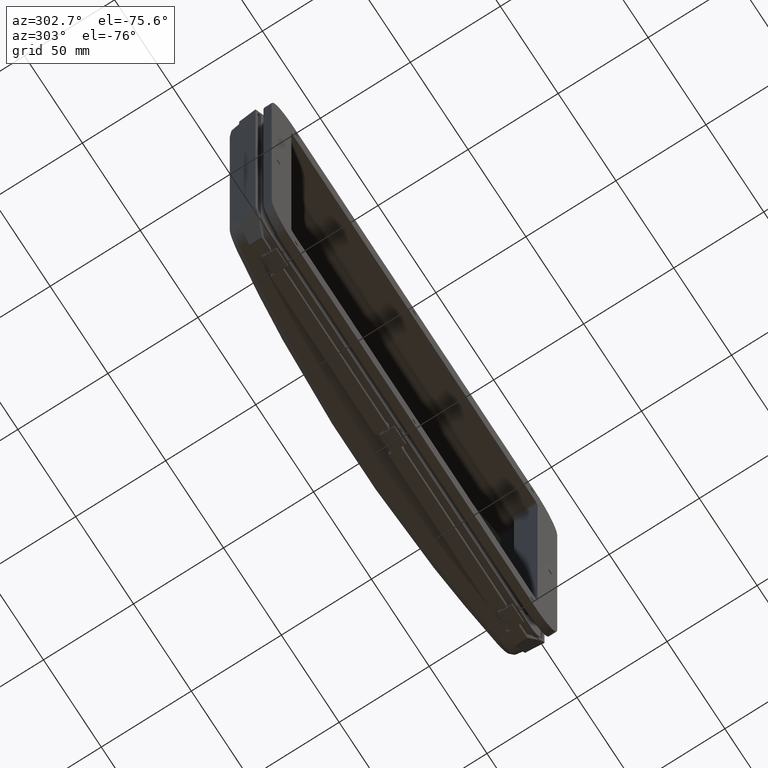
[diagram: clean part render]
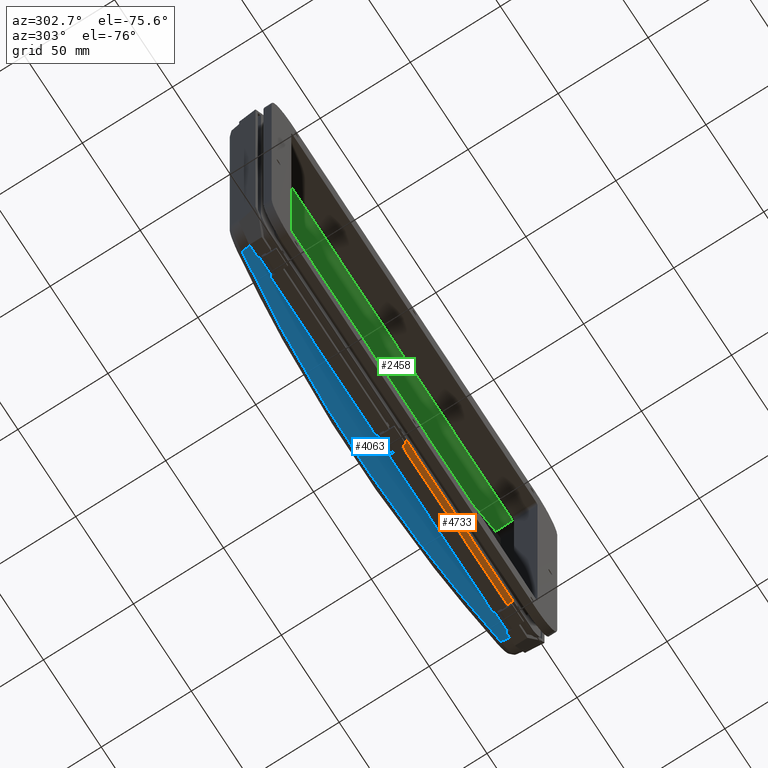
[diagram: same view with three faces highlighted in distinct colors, each labeled with its STEP entity id]
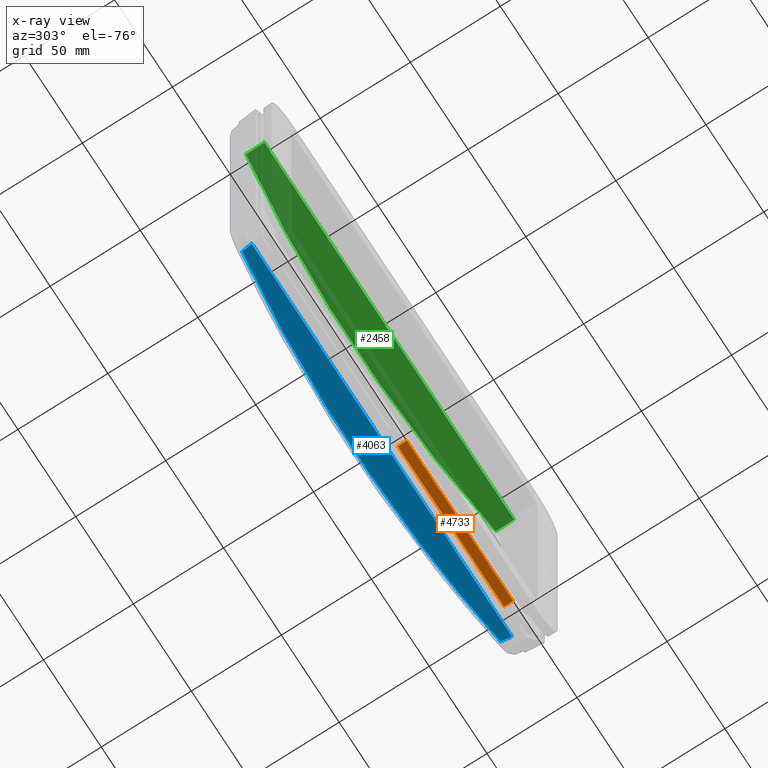
[diagram: x-ray of the same camera — body ghosted, the three highlighted faces saturated]
A machine part, auxiliary view with three faces highlighted in distinct colors.
The next image is the same camera in x-ray (body ghosted, the three faces saturated) — at least one of them is partly hidden behind the body in this view.
Their STEP definitions:

[orange] entity #4733 — the highlighted planar face has unit normal (-0, 0, 1).
#3015 = LINE ( 'NONE', #3039, #3038 ) ;
#3016 = CARTESIAN_POINT ( 'NONE',  ( 5.000000000000004400, 6.499999999999997300, -106.0000000000000300 ) ) ;
#3024 = CARTESIAN_POINT ( 'NONE',  ( -107.5000000000000000, 6.499999999999997300, -106.0000000000000400 ) ) ;
#3025 = LINE ( 'NONE', #3024, #3055 ) ;
#3027 = DIRECTION ( 'NONE',  ( 0.0000000000000000000, 1.000000000000000000, -0.0000000000000000000 ) ) ;
#3038 = VECTOR ( 'NONE', #3027, 1000.000000000000000 ) ;
#3039 = CARTESIAN_POINT ( 'NONE',  ( 5.000000000000004400, 8.499999999999996400, -106.0000000000000300 ) ) ;
#3054 = DIRECTION ( 'NONE',  ( 1.000000000000000000, -0.0000000000000000000, 1.290957005378089100E-016 ) ) ;
#3055 = VECTOR ( 'NONE', #3054, 1000.000000000000000 ) ;
#3166 = FACE_OUTER_BOUND ( 'NONE', #4734, .T. ) ;
#3196 = DIRECTION ( 'NONE',  ( 1.000000000000000000, 0.0000000000000000000, 1.290957005378089100E-016 ) ) ;
#3202 = AXIS2_PLACEMENT_3D ( 'NONE', #3212, #3216, #3196 ) ;
#3212 = CARTESIAN_POINT ( 'NONE',  ( -107.5000000000000000, 8.499999999999996400, -106.0000000000000400 ) ) ;
#3213 = PLANE ( 'NONE',  #3202 ) ;
#3216 = DIRECTION ( 'NONE',  ( -1.290957005378089100E-016, 0.0000000000000000000, 1.000000000000000000 ) ) ;
#4468 = ORIENTED_EDGE ( 'NONE', *, *, #4469, .F. ) ;
#4469 = EDGE_CURVE ( 'NONE', #4470, #4471, #7062, .T. ) ;
#4470 = VERTEX_POINT ( 'NONE', #7240 ) ;
#4471 = VERTEX_POINT ( 'NONE', #7239 ) ;
#4472 = ORIENTED_EDGE ( 'NONE', *, *, #4473, .T. ) ;
#4473 = EDGE_CURVE ( 'NONE', #4470, #4474, #7238, .T. ) ;
#4474 = VERTEX_POINT ( 'NONE', #7234 ) ;
#4633 = ORIENTED_EDGE ( 'NONE', *, *, #4634, .T. ) ;
#4634 = EDGE_CURVE ( 'NONE', #4474, #4635, #3015, .T. ) ;
#4635 = VERTEX_POINT ( 'NONE', #3016 ) ;
#4636 = ORIENTED_EDGE ( 'NONE', *, *, #4639, .T. ) ;
#4639 = EDGE_CURVE ( 'NONE', #4635, #4471, #3025, .T. ) ;
#4733 = ADVANCED_FACE ( 'NONE', ( #3166 ), #3213, .F. ) ;
#4734 = EDGE_LOOP ( 'NONE', ( #4468, #4472, #4633, #4636 ) ) ;
#7059 = DIRECTION ( 'NONE',  ( 0.0000000000000000000, 1.000000000000000000, -0.0000000000000000000 ) ) ;
#7060 = VECTOR ( 'NONE', #7059, 1000.000000000000000 ) ;
#7061 = CARTESIAN_POINT ( 'NONE',  ( 96.99999999999998600, 8.499999999999996400, -106.0000000000000100 ) ) ;
#7062 = LINE ( 'NONE', #7061, #7060 ) ;
#7234 = CARTESIAN_POINT ( 'NONE',  ( 5.000000000000000000, 1.500000000000000000, -106.0000000000000300 ) ) ;
#7235 = DIRECTION ( 'NONE',  ( -1.000000000000000000, -0.0000000000000000000, -1.290957005378089100E-016 ) ) ;
#7236 = VECTOR ( 'NONE', #7235, 1000.000000000000000 ) ;
#7237 = CARTESIAN_POINT ( 'NONE',  ( -107.5000000000000000, 1.500000000000000000, -106.0000000000000400 ) ) ;
#7238 = LINE ( 'NONE', #7237, #7236 ) ;
#7239 = CARTESIAN_POINT ( 'NONE',  ( 96.99999999999998600, 6.499999999999997300, -106.0000000000000100 ) ) ;
#7240 = CARTESIAN_POINT ( 'NONE',  ( 96.99999999999998600, 1.500000000000000000, -106.0000000000000100 ) ) ;

[blue] entity #4063 — the highlighted planar face has unit normal (0, 0.0872, -0.9962).
#2629 = LINE ( 'NONE', #2630, #2632 ) ;
#2630 = CARTESIAN_POINT ( 'NONE',  ( -120.3797204745453500, 10.00000000000000200, -99.49999999999998600 ) ) ;
#2632 = VECTOR ( 'NONE', #2634, 1000.000000000000000 ) ;
#2634 = DIRECTION ( 'NONE',  ( -1.000000000000000000, -0.0000000000000000000, -1.152834360563991800E-016 ) ) ;
#3465 = CARTESIAN_POINT ( 'NONE',  ( -112.6212267044548000, 10.00000000000000200, -99.49999999999998600 ) ) ;
#3470 = CARTESIAN_POINT ( 'NONE',  ( -111.7869974802819500, 15.93584936320751500, -98.98068047232175100 ) ) ;
#3471 = DIRECTION ( 'NONE',  ( 0.1386537057611216800, 0.9865723798690520000, 0.08631389898633377900 ) ) ;
#3472 = VECTOR ( 'NONE', #3471, 1000.000000000000100 ) ;
#3473 = CARTESIAN_POINT ( 'NONE',  ( -110.4561005005856500, 25.40567343615123600, -98.15217822035428700 ) ) ;
#3474 = LINE ( 'NONE', #3473, #3472 ) ;
#3711 = EDGE_CURVE ( 'NONE', #4924, #4880, #2629, .T. ) ;
#3779 = EDGE_CURVE ( 'NONE', #4902, #4924, #6121, .T. ) ;
#4030 = EDGE_LOOP ( 'NONE', ( #4064, #4065, #4067, #4056 ) ) ;
#4056 = ORIENTED_EDGE ( 'NONE', *, *, #3711, .T. ) ;
#4063 = ADVANCED_FACE ( 'NONE', ( #6438 ), #6463, .T. ) ;
#4064 = ORIENTED_EDGE ( 'NONE', *, *, #4882, .T. ) ;
#4065 = ORIENTED_EDGE ( 'NONE', *, *, #4066, .T. ) ;
#4066 = EDGE_CURVE ( 'NONE', #4885, #4902, #6441, .T. ) ;
#4067 = ORIENTED_EDGE ( 'NONE', *, *, #3779, .T. ) ;
#4880 = VERTEX_POINT ( 'NONE', #3465 ) ;
#4882 = EDGE_CURVE ( 'NONE', #4880, #4885, #3474, .T. ) ;
#4885 = VERTEX_POINT ( 'NONE', #3470 ) ;
#4902 = VERTEX_POINT ( 'NONE', #7270 ) ;
#4924 = VERTEX_POINT ( 'NONE', #7278 ) ;
#6118 = DIRECTION ( 'NONE',  ( 0.1386537057611217100, -0.9865723798690520000, -0.08631389898633375100 ) ) ;
#6119 = VECTOR ( 'NONE', #6118, 1000.000000000000100 ) ;
#6120 = CARTESIAN_POINT ( 'NONE',  ( 110.4561005005856300, 25.40567343615125800, -98.15217822035425900 ) ) ;
#6121 = LINE ( 'NONE', #6120, #6119 ) ;
#6438 = FACE_OUTER_BOUND ( 'NONE', #4030, .T. ) ;
#6440 = AXIS2_PLACEMENT_3D ( 'NONE', #6478, #6450, #6449 ) ;
#6441 = B_SPLINE_CURVE_WITH_KNOTS ( 'NONE', 3,
 ( #6464, #6457, #6456, #6455, #6527, #6526 ),
 .UNSPECIFIED., .F., .F.,
 ( 4, 2, 4 ),
 ( 0.0000000000000000000, 0.5000000000000000000, 1.000000000000000000 ),
 .UNSPECIFIED. ) ;
#6449 = DIRECTION ( 'NONE',  ( 0.0000000000000000000, 0.9961946980917455500, 0.08715574274765836000 ) ) ;
#6450 = DIRECTION ( 'NONE',  ( 1.148447477771836300E-016, 0.08715574274765836000, -0.9961946980917455500 ) ) ;
#6455 = CARTESIAN_POINT ( 'NONE',  ( 37.50774748345170900, 23.80644732086910400, -98.29209237585605800 ) ) ;
#6456 = CARTESIAN_POINT ( 'NONE',  ( -37.50774748344976900, 23.80635436575232300, -98.29210050837500000 ) ) ;
#6457 = CARTESIAN_POINT ( 'NONE',  ( -74.77073575915129300, 21.18283720490531200, -98.52162851851484500 ) ) ;
#6463 = PLANE ( 'NONE',  #6440 ) ;
#6464 = CARTESIAN_POINT ( 'NONE',  ( -111.7869974802819500, 15.93584936320751500, -98.98068047232175100 ) ) ;
#6478 = CARTESIAN_POINT ( 'NONE',  ( -5.179260919542339200E-014, 10.00000000000000200, -99.49999999999997200 ) ) ;
#6526 = CARTESIAN_POINT ( 'NONE',  ( 111.7869974802819300, 15.93584936320763900, -98.98068047232170800 ) ) ;
#6527 = CARTESIAN_POINT ( 'NONE',  ( 74.77007997687938700, 21.18293016083467300, -98.52162038592479100 ) ) ;
#7270 = CARTESIAN_POINT ( 'NONE',  ( 111.7869974802819300, 15.93584936320763900, -98.98068047232170800 ) ) ;
#7278 = CARTESIAN_POINT ( 'NONE',  ( 112.6212267044547300, 10.00000000000000200, -99.49999999999995700 ) ) ;

[green] entity #2458 — the highlighted planar face has unit normal (0, -0.0872, -0.9962).
#712 = DIRECTION ( 'NONE',  ( -1.119415922336387600E-017, -0.9961946980917455500, 0.08715574274765836000 ) ) ;
#713 = VECTOR ( 'NONE', #712, 1000.000000000000100 ) ;
#714 = CARTESIAN_POINT ( 'NONE',  ( 108.0499999999999500, 6.000000000000001800, 97.45000000000006000 ) ) ;
#715 = LINE ( 'NONE', #714, #713 ) ;
#909 = DIRECTION ( 'NONE',  ( 0.0000000000000000000, 0.9961946980917455500, -0.08715574274765837400 ) ) ;
#910 = DIRECTION ( 'NONE',  ( 1.279498254084871400E-016, -0.08715574274765837400, -0.9961946980917455500 ) ) ;
#912 = CARTESIAN_POINT ( 'NONE',  ( 108.0499999999999500, 6.000000000000001800, 97.45000000000006000 ) ) ;
#913 = AXIS2_PLACEMENT_3D ( 'NONE', #912, #910, #909 ) ;
#959 = PLANE ( 'NONE',  #913 ) ;
#960 = FACE_OUTER_BOUND ( 'NONE', #2459, .T. ) ;
#1333 = ORIENTED_EDGE ( 'NONE', *, *, #4752, .F. ) ;
#1334 = ORIENTED_EDGE ( 'NONE', *, *, #4749, .T. ) ;
#1335 = ORIENTED_EDGE ( 'NONE', *, *, #4838, .T. ) ;
#2340 = ORIENTED_EDGE ( 'NONE', *, *, #2341, .T. ) ;
#2341 = EDGE_CURVE ( 'NONE', #4772, #4837, #715, .T. ) ;
#2458 = ADVANCED_FACE ( 'NONE', ( #960 ), #959, .T. ) ;
#2459 = EDGE_LOOP ( 'NONE', ( #2340, #1335, #1333, #1334 ) ) ;
#3218 =( BOUNDED_CURVE ( )  B_SPLINE_CURVE ( 3, ( #3225, #3234, #3250, #3226 ),
 .UNSPECIFIED., .F., .T. ) 
 B_SPLINE_CURVE_WITH_KNOTS ( ( 4, 4 ),
 ( 3.005705936908521300, 3.277479370271068100 ),
 .UNSPECIFIED. ) 
 CURVE ( )  GEOMETRIC_REPRESENTATION_ITEM ( )  RATIONAL_B_SPLINE_CURVE ( ( 1.000000000000000000, 0.9938543987933716700, 0.9938543987933716700, 1.000000000000000000 ) ) 
 REPRESENTATION_ITEM ( '' )  );
#3225 = CARTESIAN_POINT ( 'NONE',  ( -108.0499999999999800, 16.24740271638991400, 96.55346843173117600 ) ) ;
#3226 = CARTESIAN_POINT ( 'NONE',  ( 108.0499999999999500, 16.24740271638991400, 96.55346843173120400 ) ) ;
#3228 = DIRECTION ( 'NONE',  ( 0.0000000000000000000, -0.9961946980917455500, 0.08715574274765837400 ) ) ;
#3229 = VECTOR ( 'NONE', #3228, 1000.000000000000100 ) ;
#3234 = CARTESIAN_POINT ( 'NONE',  ( -36.23937944068479300, 26.06602094248326300, 95.69445064545897100 ) ) ;
#3250 = CARTESIAN_POINT ( 'NONE',  ( 36.23937944068472900, 26.06602094248325200, 95.69445064545897100 ) ) ;
#3258 = CARTESIAN_POINT ( 'NONE',  ( -108.0499999999999800, 6.000000000000002700, 97.45000000000004500 ) ) ;
#3259 = LINE ( 'NONE', #3258, #3229 ) ;
#3306 = CARTESIAN_POINT ( 'NONE',  ( 108.0499999999999500, 16.24740271638991400, 96.55346843173120400 ) ) ;
#3386 = LINE ( 'NONE', #3395, #3394 ) ;
#3388 = CARTESIAN_POINT ( 'NONE',  ( 108.0499999999999500, 6.000000000000001800, 97.45000000000006000 ) ) ;
#3393 = DIRECTION ( 'NONE',  ( -1.000000000000000000, 0.0000000000000000000, -1.284385729552472200E-016 ) ) ;
#3394 = VECTOR ( 'NONE', #3393, 1000.000000000000000 ) ;
#3395 = CARTESIAN_POINT ( 'NONE',  ( 108.0499999999999500, 6.000000000000001800, 97.45000000000006000 ) ) ;
#3446 = CARTESIAN_POINT ( 'NONE',  ( -108.0499999999999800, 6.000000000000001800, 97.45000000000003100 ) ) ;
#4749 = EDGE_CURVE ( 'NONE', #5043, #4772, #3218, .T. ) ;
#4752 = EDGE_CURVE ( 'NONE', #5043, #4841, #3259, .T. ) ;
#4772 = VERTEX_POINT ( 'NONE', #3306 ) ;
#4837 = VERTEX_POINT ( 'NONE', #3388 ) ;
#4838 = EDGE_CURVE ( 'NONE', #4837, #4841, #3386, .T. ) ;
#4841 = VERTEX_POINT ( 'NONE', #3446 ) ;
#5043 = VERTEX_POINT ( 'NONE', #7621 ) ;
#7621 = CARTESIAN_POINT ( 'NONE',  ( -108.0499999999999800, 16.24740271638991400, 96.55346843173117600 ) ) ;